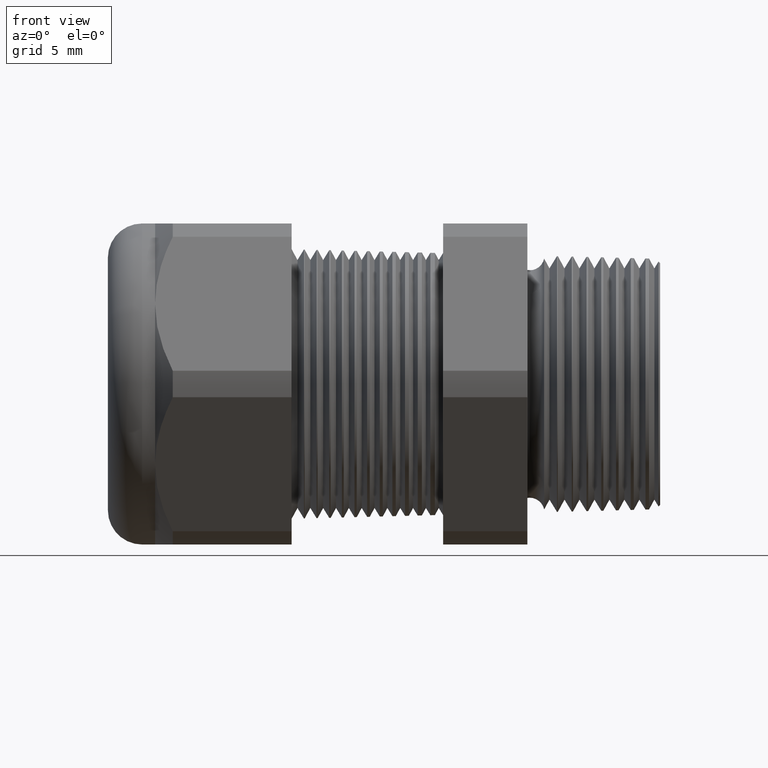
[diagram: clean part render]
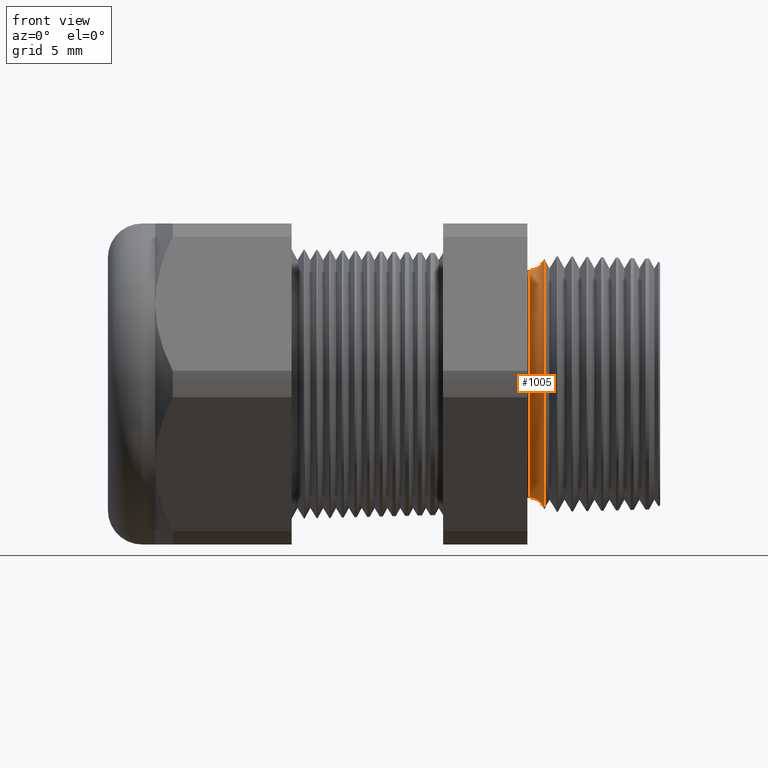
[diagram: same view with one face highlighted and labeled with its STEP entity id]
A machine part, front view. The second image highlights one B-rep face of the part: STEP entity #1005.
In plain terms, the highlighted toroidal blend (fillet) surface has major radius 7.6346 mm and minor (blend) radius 0.889 mm.
Its self-contained STEP definition (entity closure, byte-faithful):
#965 = EDGE_CURVE ( 'NONE', #966, #1073, #2773, .T. ) ;
#966 = VERTEX_POINT ( 'NONE', #2768 ) ;
#1005 = ADVANCED_FACE ( 'NONE', ( #2843 ), #2842, .F. ) ;
#1006 = EDGE_LOOP ( 'NONE', ( #1007, #1008, #1010, #1011 ) ) ;
#1007 = ORIENTED_EDGE ( 'NONE', *, *, #965, .T. ) ;
#1008 = ORIENTED_EDGE ( 'NONE', *, *, #1009, .T. ) ;
#1009 = EDGE_CURVE ( 'NONE', #1073, #1064, #2838, .T. ) ;
#1010 = ORIENTED_EDGE ( 'NONE', *, *, #1034, .F. ) ;
#1011 = ORIENTED_EDGE ( 'NONE', *, *, #1012, .F. ) ;
#1012 = EDGE_CURVE ( 'NONE', #966, #1025, #2833, .T. ) ;
#1025 = VERTEX_POINT ( 'NONE', #2867 ) ;
#1034 = EDGE_CURVE ( 'NONE', #1025, #1064, #2855, .T. ) ;
#1064 = VERTEX_POINT ( 'NONE', #2922 ) ;
#1073 = VERTEX_POINT ( 'NONE', #2965 ) ;
#2768 = CARTESIAN_POINT ( 'NONE',  ( -0.2708463023710462300, 0.0000000000000000000, 0.2929249030550887800 ) ) ;
#2769 = DIRECTION ( 'NONE',  ( 0.0000000000000000000, 1.224646799147352700E-016, 1.000000000000000000 ) ) ;
#2770 = DIRECTION ( 'NONE',  ( 0.0000000000000000000, 1.000000000000000000, -1.224646799147353200E-016 ) ) ;
#2771 = CARTESIAN_POINT ( 'NONE',  ( -0.3049999999999999400, 3.680982880930849200E-017, 0.3005750624174817800 ) ) ;
#2772 = AXIS2_PLACEMENT_3D ( 'NONE', #2771, #2770, #2769 ) ;
#2773 = CIRCLE ( 'NONE', #2772, 0.03499999999999996900 ) ;
#2784 = CARTESIAN_POINT ( 'NONE',  ( -0.3049999999999999400, 0.0000000000000000000, 0.0000000000000000000 ) ) ;
#2829 = DIRECTION ( 'NONE',  ( 0.0000000000000000000, 0.0000000000000000000, 1.000000000000000000 ) ) ;
#2830 = DIRECTION ( 'NONE',  ( 1.000000000000000000, 0.0000000000000000000, 0.0000000000000000000 ) ) ;
#2831 = CARTESIAN_POINT ( 'NONE',  ( -0.2708463023710462300, 0.0000000000000000000, 0.0000000000000000000 ) ) ;
#2832 = AXIS2_PLACEMENT_3D ( 'NONE', #2831, #2830, #2829 ) ;
#2833 = CIRCLE ( 'NONE', #2832, 0.2929249030550887800 ) ;
#2834 = DIRECTION ( 'NONE',  ( 0.0000000000000000000, 0.0000000000000000000, -1.000000000000000000 ) ) ;
#2835 = DIRECTION ( 'NONE',  ( 1.000000000000000000, 0.0000000000000000000, 0.0000000000000000000 ) ) ;
#2836 = CARTESIAN_POINT ( 'NONE',  ( -0.3049999999999999400, 0.0000000000000000000, 0.0000000000000000000 ) ) ;
#2837 = AXIS2_PLACEMENT_3D ( 'NONE', #2836, #2835, #2834 ) ;
#2838 = CIRCLE ( 'NONE', #2837, 0.2655750624174818000 ) ;
#2839 = DIRECTION ( 'NONE',  ( 0.0000000000000000000, 0.0000000000000000000, -1.000000000000000000 ) ) ;
#2840 = DIRECTION ( 'NONE',  ( 1.000000000000000000, 0.0000000000000000000, 0.0000000000000000000 ) ) ;
#2841 = AXIS2_PLACEMENT_3D ( 'NONE', #2784, #2840, #2839 ) ;
#2842 = TOROIDAL_SURFACE ( 'NONE', #2841, 0.3005750624174817800, 0.03499999999999994800 ) ;
#2843 = FACE_OUTER_BOUND ( 'NONE', #1006, .T. ) ;
#2851 = DIRECTION ( 'NONE',  ( 0.0000000000000000000, 0.0000000000000000000, -1.000000000000000000 ) ) ;
#2852 = DIRECTION ( 'NONE',  ( 0.0000000000000000000, -1.000000000000000000, 0.0000000000000000000 ) ) ;
#2853 = CARTESIAN_POINT ( 'NONE',  ( -0.3049999999999999400, 0.0000000000000000000, -0.3005750624174817800 ) ) ;
#2854 = AXIS2_PLACEMENT_3D ( 'NONE', #2853, #2852, #2851 ) ;
#2855 = CIRCLE ( 'NONE', #2854, 0.03499999999999996900 ) ;
#2867 = CARTESIAN_POINT ( 'NONE',  ( -0.2708463023710462300, 3.587295449169631900E-017, -0.2929249030550887800 ) ) ;
#2922 = CARTESIAN_POINT ( 'NONE',  ( -0.3049999999999999400, 0.0000000000000000000, -0.2655750624174818000 ) ) ;
#2965 = CARTESIAN_POINT ( 'NONE',  ( -0.3049999999999999400, 3.252356501229276600E-017, 0.2655750624174818000 ) ) ;